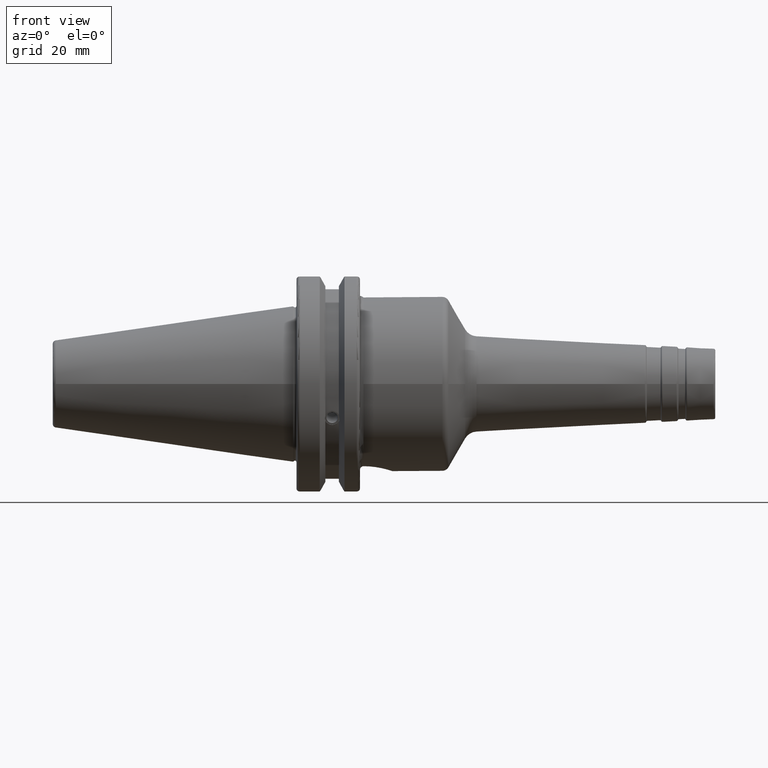
[diagram: clean part render]
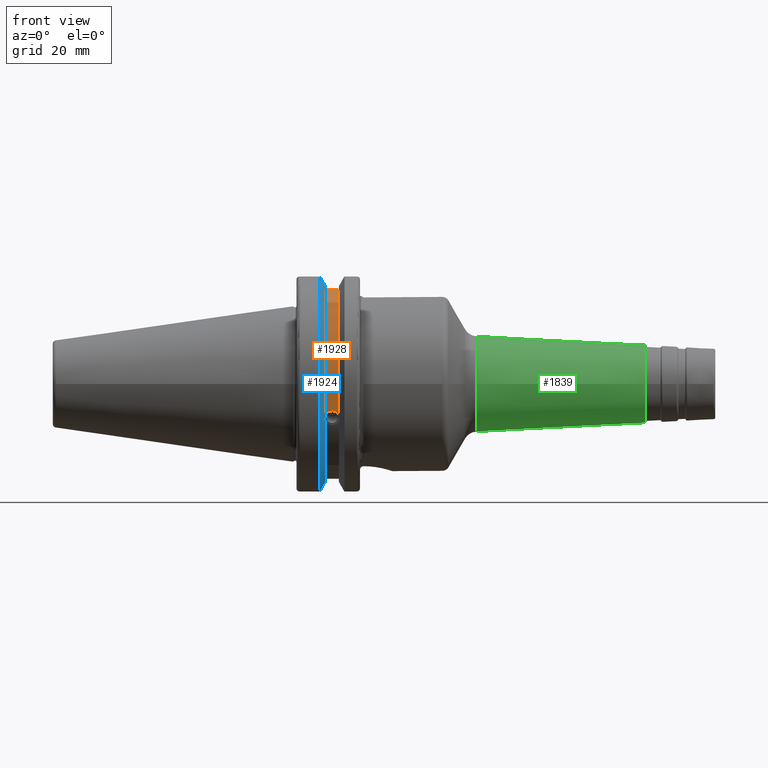
[diagram: same view with three faces highlighted in distinct colors, each labeled with its STEP entity id]
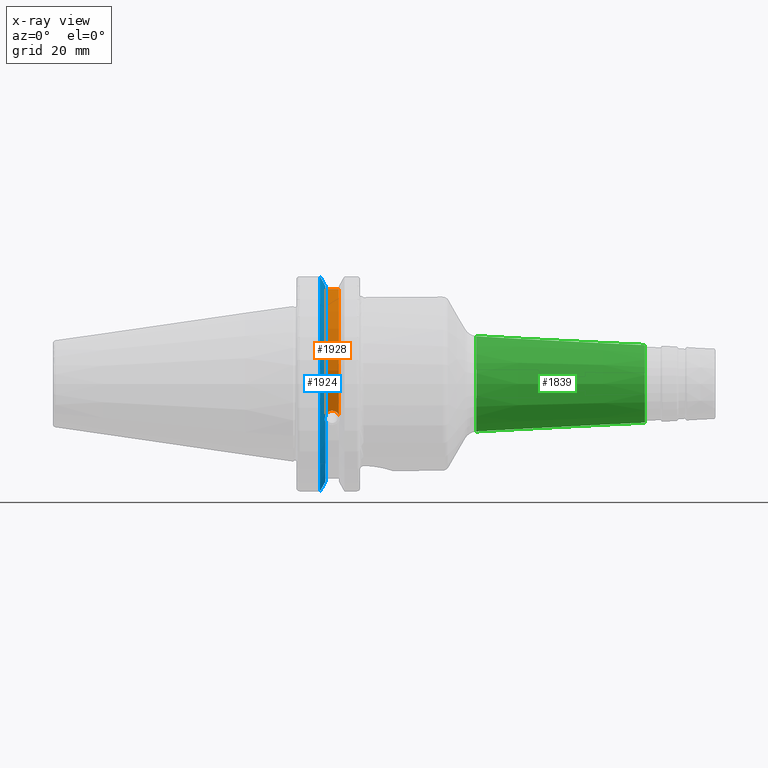
[diagram: x-ray of the same camera — body ghosted, the three highlighted faces saturated]
A machine part, front view with three faces highlighted in distinct colors.
The next image is the same camera in x-ray (body ghosted, the three faces saturated) — at least one of them is partly hidden behind the body in this view.
Their STEP definitions:

[orange] entity #1928 — the highlighted cylindrical surface (partial cylindrical patch) has radius 28.15 mm, axis along (1, 0, 0).
#128=B_SPLINE_CURVE_WITH_KNOTS('',3,(#3198,#3199,#3200,#3201,#3202,#3203,
#3204,#3205,#3206,#3207,#3208,#3209,#3210,#3211),.UNSPECIFIED.,.F.,.F.,
(4,2,2,2,2,2,4),(0.401639126382403,0.474814416953736,0.553950208498303,
0.63308600004287,0.712221791587437,0.791357583132004,0.864532873703337),
 .UNSPECIFIED.);
#182=CYLINDRICAL_SURFACE('',#2198,28.15);
#283=FACE_OUTER_BOUND('',#403,.T.);
#403=EDGE_LOOP('',(#1773,#1774,#1775,#1776));
#487=LINE('',#3623,#585);
#585=VECTOR('',#2673,10.);
#729=CIRCLE('',#2195,28.15);
#731=CIRCLE('',#2199,28.15);
#820=VERTEX_POINT('',#3195);
#821=VERTEX_POINT('',#3197);
#903=VERTEX_POINT('',#3620);
#904=VERTEX_POINT('',#3622);
#1051=EDGE_CURVE('',#821,#820,#128,.T.);
#1164=EDGE_CURVE('',#904,#903,#487,.T.);
#1212=EDGE_CURVE('',#903,#821,#729,.T.);
#1214=EDGE_CURVE('',#904,#820,#731,.T.);
#1773=ORIENTED_EDGE('',*,*,#1051,.T.);
#1774=ORIENTED_EDGE('',*,*,#1214,.F.);
#1775=ORIENTED_EDGE('',*,*,#1164,.T.);
#1776=ORIENTED_EDGE('',*,*,#1212,.T.);
#1928=ADVANCED_FACE('',(#283),#182,.T.);
#2195=AXIS2_PLACEMENT_3D('',#3768,#2778,#2779);
#2198=AXIS2_PLACEMENT_3D('',#3771,#2784,#2785);
#2199=AXIS2_PLACEMENT_3D('',#3772,#2786,#2787);
#2673=DIRECTION('',(-1.,0.,0.));
#2778=DIRECTION('center_axis',(1.,0.,0.));
#2779=DIRECTION('ref_axis',(0.,0.,-1.));
#2784=DIRECTION('center_axis',(1.,0.,0.));
#2785=DIRECTION('ref_axis',(0.,-0.887654187951484,0.46051063246378));
#2786=DIRECTION('center_axis',(1.,0.,0.));
#2787=DIRECTION('ref_axis',(0.,0.,-1.));
#3195=CARTESIAN_POINT('',(13.0491,-26.734714844398,-8.81348524641212));
#3197=CARTESIAN_POINT('',(9.2191,-26.734714844398,-8.81348524641212));
#3198=CARTESIAN_POINT('Ctrl Pts',(9.2191,-26.734714844398,-8.81348524641212));
#3199=CARTESIAN_POINT('Ctrl Pts',(9.32533057097183,-26.8086519721597,-8.58920529678291));
#3200=CARTESIAN_POINT('Ctrl Pts',(9.4768201377051,-26.8729987454904,-8.38416529997369));
#3201=CARTESIAN_POINT('Ctrl Pts',(9.83557062657411,-26.9778908791383,-8.04056861831091));
#3202=CARTESIAN_POINT('Ctrl Pts',(10.0716450112988,-27.0233016799732,-7.88512567185902));
#3203=CARTESIAN_POINT('Ctrl Pts',(10.5890125426388,-27.0826966800569,-7.6786444840004));
#3204=CARTESIAN_POINT('Ctrl Pts',(10.8703140281848,-27.0968804077294,-7.62768458768512));
#3205=CARTESIAN_POINT('Ctrl Pts',(11.3978859718152,-27.0968804077294,-7.62768458768512));
#3206=CARTESIAN_POINT('Ctrl Pts',(11.6791874573612,-27.0826966800569,-7.6786444840004));
#3207=CARTESIAN_POINT('Ctrl Pts',(12.1965549887012,-27.0233016799732,-7.88512567185902));
#3208=CARTESIAN_POINT('Ctrl Pts',(12.4326293734259,-26.9778908791383,-8.04056861831091));
#3209=CARTESIAN_POINT('Ctrl Pts',(12.7913798622949,-26.8729987454904,-8.38416529997369));
#3210=CARTESIAN_POINT('Ctrl Pts',(12.9428694290282,-26.8086519721597,-8.58920529678291));
#3211=CARTESIAN_POINT('Ctrl Pts',(13.0491,-26.734714844398,-8.81348524641212));
#3620=CARTESIAN_POINT('',(9.2191,-8.19,26.932255754021));
#3622=CARTESIAN_POINT('',(13.0491,-8.19,26.932255754021));
#3623=CARTESIAN_POINT('',(11.1341,-8.19,26.932255754021));
#3768=CARTESIAN_POINT('Origin',(9.2191,0.,0.));
#3771=CARTESIAN_POINT('Origin',(11.1341,0.,0.));
#3772=CARTESIAN_POINT('Origin',(13.0491,0.,0.));

[blue] entity #1924 — the highlighted conical surface has half-angle 60 deg.
#24=(
BOUNDED_CURVE()
B_SPLINE_CURVE(2,(#3617,#3618,#3619),.UNSPECIFIED.,.F.,.F.)
B_SPLINE_CURVE_WITH_KNOTS((3,3),(0.,0.276549142797088),.UNSPECIFIED.)
CURVE()
GEOMETRIC_REPRESENTATION_ITEM()
RATIONAL_B_SPLINE_CURVE((1.,1.00095203903867,1.00031614444995))
REPRESENTATION_ITEM('')
);
#25=(
BOUNDED_CURVE()
B_SPLINE_CURVE(2,(#3629,#3630,#3631),.UNSPECIFIED.,.F.,.F.)
B_SPLINE_CURVE_WITH_KNOTS((3,3),(0.0550586467393311,0.331607789535851),
 .UNSPECIFIED.)
CURVE()
GEOMETRIC_REPRESENTATION_ITEM()
RATIONAL_B_SPLINE_CURVE((1.00031614445049,1.00095203904028,1.))
REPRESENTATION_ITEM('')
);
#26=(
BOUNDED_CURVE()
B_SPLINE_CURVE(2,(#3664,#3665,#3666),.UNSPECIFIED.,.F.,.F.)
B_SPLINE_CURVE_WITH_KNOTS((3,3),(0.,0.0639048713675838),.UNSPECIFIED.)
CURVE()
GEOMETRIC_REPRESENTATION_ITEM()
RATIONAL_B_SPLINE_CURVE((1.,1.00028444218292,1.00047644010588))
REPRESENTATION_ITEM('')
);
#27=(
BOUNDED_CURVE()
B_SPLINE_CURVE(2,(#3672,#3673,#3674),.UNSPECIFIED.,.F.,.F.)
B_SPLINE_CURVE_WITH_KNOTS((3,3),(0.329353533631213,0.393258405001024),
 .UNSPECIFIED.)
CURVE()
GEOMETRIC_REPRESENTATION_ITEM()
RATIONAL_B_SPLINE_CURVE((1.00047644010576,1.00028444218285,1.))
REPRESENTATION_ITEM('')
);
#129=B_SPLINE_CURVE_WITH_KNOTS('',3,(#3215,#3216,#3217,#3218,#3219,#3220,
#3221,#3222,#3223,#3224,#3225,#3226,#3227,#3228),.UNSPECIFIED.,.F.,.F.,
(4,2,2,2,2,2,4),(0.451995700189025,0.464547828547662,0.504528771685168,
0.544509714822673,0.584490657960178,0.624471601097683,0.637023729456319),
 .UNSPECIFIED.);
#279=FACE_OUTER_BOUND('',#399,.T.);
#399=EDGE_LOOP('',(#1753,#1754,#1755,#1756,#1757,#1758,#1759,#1760));
#692=CIRCLE('',#2100,28.9593772964944);
#715=CIRCLE('',#2158,31.75);
#727=CIRCLE('',#2191,28.9593772964944);
#822=VERTEX_POINT('',#3212);
#823=VERTEX_POINT('',#3214);
#840=VERTEX_POINT('',#3307);
#901=VERTEX_POINT('',#3614);
#902=VERTEX_POINT('',#3616);
#905=VERTEX_POINT('',#3628);
#909=VERTEX_POINT('',#3662);
#910=VERTEX_POINT('',#3668);
#1053=EDGE_CURVE('',#823,#822,#129,.T.);
#1077=EDGE_CURVE('',#823,#840,#692,.T.);
#1162=EDGE_CURVE('',#902,#901,#24,.T.);
#1168=EDGE_CURVE('',#905,#840,#25,.T.);
#1176=EDGE_CURVE('',#909,#901,#26,.T.);
#1178=EDGE_CURVE('',#909,#910,#715,.T.);
#1179=EDGE_CURVE('',#905,#910,#27,.T.);
#1210=EDGE_CURVE('',#902,#822,#727,.T.);
#1753=ORIENTED_EDGE('',*,*,#1053,.T.);
#1754=ORIENTED_EDGE('',*,*,#1210,.F.);
#1755=ORIENTED_EDGE('',*,*,#1162,.T.);
#1756=ORIENTED_EDGE('',*,*,#1176,.F.);
#1757=ORIENTED_EDGE('',*,*,#1178,.T.);
#1758=ORIENTED_EDGE('',*,*,#1179,.F.);
#1759=ORIENTED_EDGE('',*,*,#1168,.T.);
#1760=ORIENTED_EDGE('',*,*,#1077,.F.);
#1826=CONICAL_SURFACE('',#2190,30.3546886482472,1.0471975511966);
#1924=ADVANCED_FACE('',(#279),#1826,.T.);
#2100=AXIS2_PLACEMENT_3D('',#3308,#2533,#2534);
#2158=AXIS2_PLACEMENT_3D('',#3670,#2691,#2692);
#2190=AXIS2_PLACEMENT_3D('',#3763,#2768,#2769);
#2191=AXIS2_PLACEMENT_3D('',#3764,#2770,#2771);
#2533=DIRECTION('center_axis',(1.,0.,0.));
#2534=DIRECTION('ref_axis',(0.,0.,-1.));
#2691=DIRECTION('center_axis',(1.,0.,0.));
#2692=DIRECTION('ref_axis',(0.,0.,-1.));
#2768=DIRECTION('center_axis',(-1.,0.,0.));
#2769=DIRECTION('ref_axis',(0.,-1.,-1.22464679914735E-16));
#2770=DIRECTION('center_axis',(1.,0.,0.));
#2771=DIRECTION('ref_axis',(0.,0.,-1.));
#3212=CARTESIAN_POINT('',(9.2191,-27.4956274489925,-9.09043478536247));
#3214=CARTESIAN_POINT('',(9.21909999999999,-26.9060914640648,-10.7101715919071));
#3215=CARTESIAN_POINT('Ctrl Pts',(9.21909999999999,-26.9060914640648,-10.7101715919071));
#3216=CARTESIAN_POINT('Ctrl Pts',(9.20497959280038,-26.9406927482839,-10.6893765730703));
#3217=CARTESIAN_POINT('Ctrl Pts',(9.19150701821433,-26.9744191989197,-10.6676007180673));
#3218=CARTESIAN_POINT('Ctrl Pts',(9.13811855884095,-27.1113422433188,-10.5723885976054));
#3219=CARTESIAN_POINT('Ctrl Pts',(9.09998029158246,-27.2180531796526,-10.4801333026531));
#3220=CARTESIAN_POINT('Ctrl Pts',(9.04778935539424,-27.3968610665578,-10.2639559818059));
#3221=CARTESIAN_POINT('Ctrl Pts',(9.0341,-27.4684373304961,-10.139516340139));
#3222=CARTESIAN_POINT('Ctrl Pts',(9.0341,-27.559599249844,-9.8890510252165));
#3223=CARTESIAN_POINT('Ctrl Pts',(9.04778935539424,-27.5847569104121,-9.74771639360671));
#3224=CARTESIAN_POINT('Ctrl Pts',(9.09998029158246,-27.5867382255984,-9.46717946402648));
#3225=CARTESIAN_POINT('Ctrl Pts',(9.13811855884095,-27.5642934663232,-9.32791534028655));
#3226=CARTESIAN_POINT('Ctrl Pts',(9.19150701821433,-27.5206055003512,-9.16696618806878));
#3227=CARTESIAN_POINT('Ctrl Pts',(9.20497959280038,-27.5087667900418,-9.12860597076219));
#3228=CARTESIAN_POINT('Ctrl Pts',(9.21909999999999,-27.4956274489925,-9.09043478536247));
#3307=CARTESIAN_POINT('',(9.2191,-8.19,-27.7771386827498));
#3308=CARTESIAN_POINT('Origin',(9.2191,0.,0.));
#3614=CARTESIAN_POINT('',(7.88668530351255,-8.19,30.1755016258903));
#3616=CARTESIAN_POINT('',(9.2191,-8.19,27.7771386827498));
#3617=CARTESIAN_POINT('Ctrl Pts',(9.2191,-8.19,27.7771386827498));
#3618=CARTESIAN_POINT('Ctrl Pts',(8.58046356153227,-8.19,28.9303689539555));
#3619=CARTESIAN_POINT('Ctrl Pts',(7.88668530351255,-8.19,30.1755016258903));
#3628=CARTESIAN_POINT('',(7.88668530351256,-8.19,-30.1755016258903));
#3629=CARTESIAN_POINT('Ctrl Pts',(7.88668530351256,-8.19,-30.1755016258903));
#3630=CARTESIAN_POINT('Ctrl Pts',(8.5804635615239,-8.19,-28.9303689539705));
#3631=CARTESIAN_POINT('Ctrl Pts',(9.2191,-8.19,-27.7771386827498));
#3662=CARTESIAN_POINT('',(7.60793323092436,-8.67204822802685,30.5427254764662));
#3664=CARTESIAN_POINT('Ctrl Pts',(7.60793323092436,-8.67204822802685,30.5427254764662));
#3665=CARTESIAN_POINT('Ctrl Pts',(7.74899148121628,-8.42917748262643,30.3577067892629));
#3666=CARTESIAN_POINT('Ctrl Pts',(7.88668530351255,-8.19,30.1755016258903));
#3668=CARTESIAN_POINT('',(7.60793323092436,-8.67204822802685,-30.5427254764662));
#3670=CARTESIAN_POINT('Origin',(7.60793323092436,0.,0.));
#3672=CARTESIAN_POINT('Ctrl Pts',(7.88668530351256,-8.19,-30.1755016258903));
#3673=CARTESIAN_POINT('Ctrl Pts',(7.7489914812116,-8.42917748263465,-30.3577067892692));
#3674=CARTESIAN_POINT('Ctrl Pts',(7.60793323092436,-8.67204822802685,-30.5427254764662));
#3763=CARTESIAN_POINT('Origin',(8.41351661546217,0.,0.));
#3764=CARTESIAN_POINT('Origin',(9.2191,0.,0.));

[green] entity #1839 — the highlighted conical surface has half-angle 3 deg.
#194=FACE_OUTER_BOUND('',#303,.T.);
#303=EDGE_LOOP('',(#1275,#1276,#1277,#1278,#1279,#1280));
#422=LINE('',#2967,#520);
#520=VECTOR('',#2284,12.351721437991);
#627=CIRCLE('',#1987,13.5548801268603);
#628=CIRCLE('',#1988,13.5548801268603);
#629=CIRCLE('',#1990,11.0469847975392);
#630=CIRCLE('',#1991,11.0469847975392);
#756=VERTEX_POINT('',#2958);
#757=VERTEX_POINT('',#2960);
#758=VERTEX_POINT('',#2964);
#759=VERTEX_POINT('',#2965);
#959=EDGE_CURVE('',#756,#757,#627,.T.);
#960=EDGE_CURVE('',#757,#756,#628,.T.);
#961=EDGE_CURVE('',#758,#759,#629,.T.);
#962=EDGE_CURVE('',#758,#757,#422,.T.);
#963=EDGE_CURVE('',#759,#758,#630,.T.);
#1275=ORIENTED_EDGE('',*,*,#961,.F.);
#1276=ORIENTED_EDGE('',*,*,#962,.T.);
#1277=ORIENTED_EDGE('',*,*,#959,.F.);
#1278=ORIENTED_EDGE('',*,*,#960,.F.);
#1279=ORIENTED_EDGE('',*,*,#962,.F.);
#1280=ORIENTED_EDGE('',*,*,#963,.F.);
#1809=CONICAL_SURFACE('',#1989,12.351721437991,0.0523598775598296);
#1839=ADVANCED_FACE('',(#194),#1809,.T.);
#1987=AXIS2_PLACEMENT_3D('',#2961,#2276,#2277);
#1988=AXIS2_PLACEMENT_3D('',#2962,#2278,#2279);
#1989=AXIS2_PLACEMENT_3D('',#2963,#2280,#2281);
#1990=AXIS2_PLACEMENT_3D('',#2966,#2282,#2283);
#1991=AXIS2_PLACEMENT_3D('',#2968,#2285,#2286);
#2276=DIRECTION('center_axis',(-1.,0.,0.));
#2277=DIRECTION('ref_axis',(0.,-1.,3.06161699786838E-17));
#2278=DIRECTION('center_axis',(-1.,0.,0.));
#2279=DIRECTION('ref_axis',(0.,-1.,3.06161699786838E-17));
#2280=DIRECTION('center_axis',(-1.,0.,0.));
#2281=DIRECTION('ref_axis',(0.,1.,0.));
#2282=DIRECTION('center_axis',(1.,0.,0.));
#2283=DIRECTION('ref_axis',(0.,-1.,3.06161699786838E-17));
#2284=DIRECTION('',(-0.998629534754574,-0.0523359562429436,-6.40930612932368E-18));
#2285=DIRECTION('center_axis',(1.,0.,0.));
#2286=DIRECTION('ref_axis',(0.,-1.,3.06161699786838E-17));
#2958=CARTESIAN_POINT('',(52.1688463908891,-1.65999405601856E-15,13.5548801268603));
#2960=CARTESIAN_POINT('',(52.1688463908891,-13.5548801268603,-1.65999405601856E-15));
#2961=CARTESIAN_POINT('Origin',(52.1688463908891,0.,-2.0749925700232E-15));
#2962=CARTESIAN_POINT('Origin',(52.1688463908891,0.,-2.0749925700232E-15));
#2963=CARTESIAN_POINT('Origin',(75.1264817902327,0.,0.));
#2964=CARTESIAN_POINT('',(100.022339968181,-11.0469847975392,-1.35286545725358E-15));
#2965=CARTESIAN_POINT('',(100.022339968181,-1.35286545725358E-15,11.0469847975392));
#2966=CARTESIAN_POINT('Origin',(100.022339968181,0.,-1.69108182156698E-15));
#2967=CARTESIAN_POINT('',(75.1264817902327,-12.351721437991,-1.51264961229954E-15));
#2968=CARTESIAN_POINT('Origin',(100.022339968181,0.,-1.69108182156698E-15));